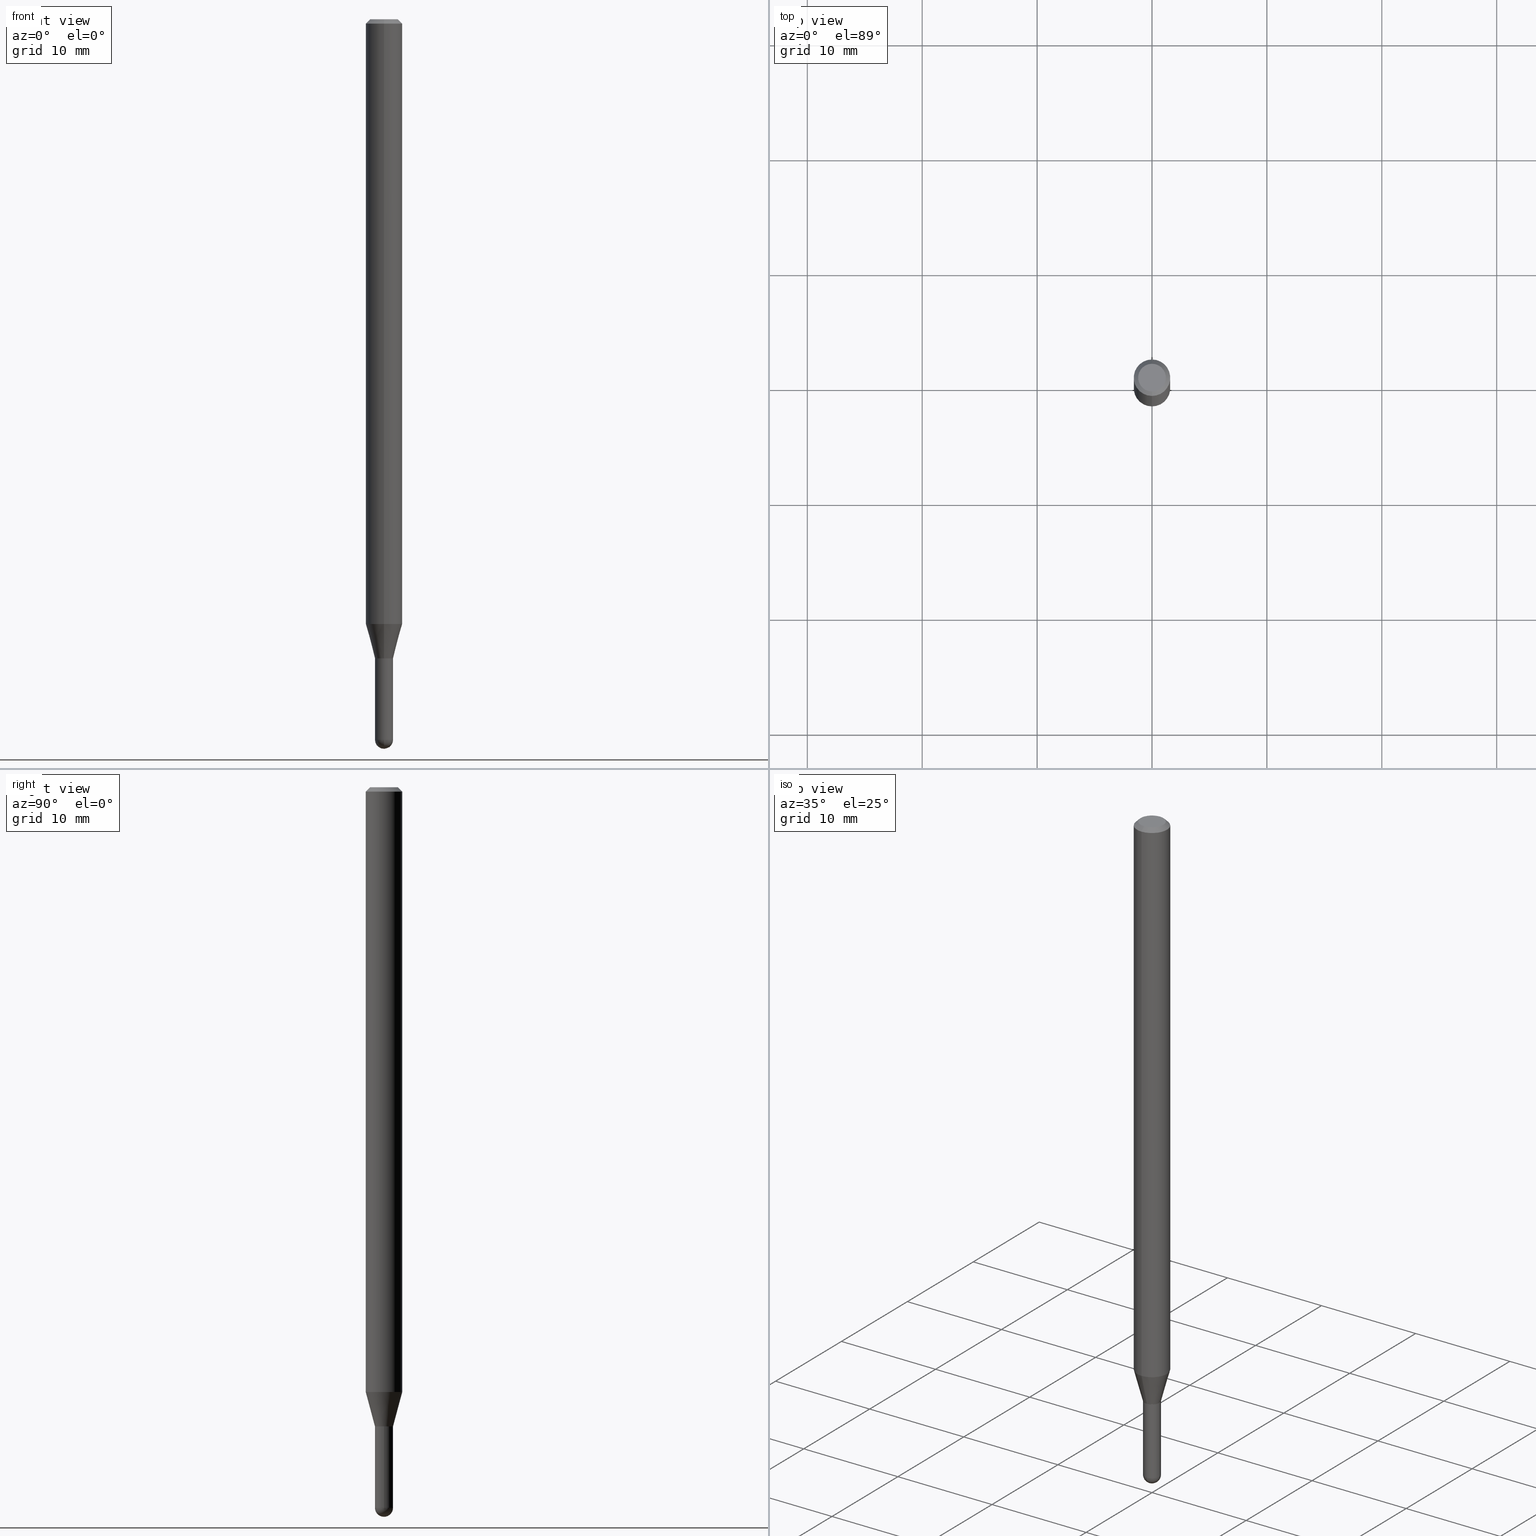
[diagram: canonical four-view strip — front | top / right | iso, engineering-drawing reading convention]
A machine part, canonical four-view strip (front | top / right | iso — engineering-drawing reading convention). The complete STEP part file that produces these views, byte-faithful:
ISO-10303-21;
HEADER;
FILE_DESCRIPTION (( 'STEP AP203' ),
    '1' );
FILE_NAME ('01512.STEP',
    '2024-03-07T19:36:01',
    ( '' ),
    ( '' ),
    'SwSTEP 2.0',
    'SolidWorks 2023',
    '' );
FILE_SCHEMA (( 'CONFIG_CONTROL_DESIGN' ));
ENDSEC;

DATA;
#1 = PERSON_AND_ORGANIZATION ( #438, #466 ) ;
#2 = DIRECTION ( 'NONE',  ( -1.000000000000000000, 6.982962677686265922E-15, -4.883557194083112340E-29 ) ) ;
#3 = EDGE_LOOP ( 'NONE', ( #104, #109 ) ) ;
#4 = CC_DESIGN_PERSON_AND_ORGANIZATION_ASSIGNMENT ( #40, #223, ( #509 ) ) ;
#5 = CARTESIAN_POINT ( 'NONE',  ( 4.440892098501135963E-16, 0.06249999999999995143, -0.01500000000000022669 ) ) ;
#6 = DATE_AND_TIME ( #339, #69 ) ;
#7 = UNCERTAINTY_MEASURE_WITH_UNIT (LENGTH_MEASURE( 1.000000000000000082E-05 ), #278, 'distance_accuracy_value', 'NONE');
#8 = DIRECTION ( 'NONE',  ( -2.445487669170412374E-29, 3.491454325974616325E-15, 1.000000000000000000 ) ) ;
#9 = CIRCLE ( 'NONE', #399, 0.03099999999999987835 ) ;
#10 = EDGE_CURVE ( 'NONE', #117, #273, #318, .T. ) ;
#11 = DATE_AND_TIME ( #80, #493 ) ;
#12 = DIRECTION ( 'NONE',  ( -2.445468806185136877E-29, 3.491481338843145188E-15, 1.000000000000000000 ) ) ;
#13 = CARTESIAN_POINT ( 'NONE',  ( 3.316907271900976096E-16, 0.04749999999999999362, -1.702748818353373679E-16 ) ) ;
#14 = AXIS2_PLACEMENT_3D ( 'NONE', #479, #321, #469 ) ;
#15 = CIRCLE ( 'NONE', #22, 0.04749999999999999362 ) ;
#16 = EDGE_CURVE ( 'NONE', #50, #384, #297, .T. ) ;
#17 = APPROVAL_DATE_TIME ( #430, #502 ) ;
#18 = APPROVAL ( #97, 'UNSPECIFIED' ) ;
#19 = CARTESIAN_POINT ( 'NONE',  ( 5.355617995483203456E-29, -7.646284973884410228E-15, -2.189999999999999947 ) ) ;
#20 = FACE_OUTER_BOUND ( 'NONE', #233, .T. ) ;
#21 = EDGE_CURVE ( 'NONE', #255, #86, #427, .T. ) ;
#22 = AXIS2_PLACEMENT_3D ( 'NONE', #192, #156, #501 ) ;
#23 = ORIENTED_EDGE ( 'NONE', *, *, #282, .T. ) ;
#24 = CARTESIAN_POINT ( 'NONE',  ( -2.164718430082737148E-16, -0.03099999999999992345, 1.082350841052128315E-16 ) ) ;
#25 = ORIENTED_EDGE ( 'NONE', *, *, #488, .F. ) ;
#26 = ORIENTED_EDGE ( 'NONE', *, *, #48, .T. ) ;
#27 = DIRECTION ( 'NONE',  ( 0.000000000000000000, 0.000000000000000000, 1.000000000000000000 ) ) ;
#28 = AXIS2_PLACEMENT_3D ( 'NONE', #468, #115, #425 ) ;
#29 = ADVANCED_FACE ( 'NONE', ( #76 ), #203, .T. ) ;
#30 = DESIGN_CONTEXT ( 'detailed design', #176, 'design' ) ;
#31 = ORIENTED_EDGE ( 'NONE', *, *, #101, .T. ) ;
#32 = CARTESIAN_POINT ( 'NONE',  ( 4.440892098500625669E-16, 0.06250000000000000000, -2.182158953734134956E-16 ) ) ;
#33 = CARTESIAN_POINT ( 'NONE',  ( -2.164718430082208858E-16, -0.03100000000000767419, -2.189500000000000224 ) ) ;
#34 = ORIENTED_EDGE ( 'NONE', *, *, #16, .F. ) ;
#35 = EDGE_CURVE ( 'NONE', #294, #419, #473, .T. ) ;
#36 = DIRECTION ( 'NONE',  ( -6.982962677686265922E-15, -1.000000000000000000, 0.000000000000000000 ) ) ;
#37 = CARTESIAN_POINT ( 'NONE',  ( -0.03099999999999999978, -7.913137530749477307E-15, -2.469000000000000306 ) ) ;
#38 = AXIS2_PLACEMENT_3D ( 'NONE', #377, #414, #264 ) ;
#39 = CONICAL_SURFACE ( 'NONE', #215, 0.03099999999999992345, 0.2617993877991575680 ) ;
#40 = PERSON_AND_ORGANIZATION ( #438, #466 ) ;
#41 = FACE_OUTER_BOUND ( 'NONE', #295, .T. ) ;
#42 = DIRECTION ( 'NONE',  ( -2.445487669170412374E-29, 3.491454325974616325E-15, 1.000000000000000000 ) ) ;
#43 = ORIENTED_EDGE ( 'NONE', *, *, #125, .F. ) ;
#44 = CARTESIAN_POINT ( 'NONE',  ( 2.164718430083277765E-16, 0.03099999999999235312, -2.189999999999999947 ) ) ;
#45 = ORIENTED_EDGE ( 'NONE', *, *, #420, .F. ) ;
#46 = ORIENTED_EDGE ( 'NONE', *, *, #141, .T. ) ;
#47 = DIRECTION ( 'NONE',  ( 1.000000000000000000, -6.982962677686270655E-15, 0.000000000000000000 ) ) ;
#48 = EDGE_CURVE ( 'NONE', #310, #164, #439, .T. ) ;
#49 = PERSON_AND_ORGANIZATION_ROLE ( 'classification_officer' ) ;
#50 = VERTEX_POINT ( 'NONE', #362 ) ;
#51 = CIRCLE ( 'NONE', #499, 0.03099999999999999978 ) ;
#52 = PERSON_AND_ORGANIZATION_ROLE ( 'design_supplier' ) ;
#53 = DIRECTION ( 'NONE',  ( -2.445487669170412374E-29, 3.491454325974616325E-15, 1.000000000000000000 ) ) ;
#54 = ADVANCED_FACE ( 'NONE', ( #381 ), #136, .T. ) ;
#55 = CARTESIAN_POINT ( 'NONE',  ( 3.668231503755621049E-31, -5.237181488961927963E-17, -0.01500000000000000812 ) ) ;
#56 = DIRECTION ( 'NONE',  ( -1.807323732225379443E-15, -0.2588190451025252359, 0.9659258262890670910 ) ) ;
#57 = VECTOR ( 'NONE', #252, 39.37007874015748143 ) ;
#58 = CONICAL_SURFACE ( 'NONE', #186, 0.03049999999999999586, 0.7853981633974739252 ) ;
#59 = ADVANCED_FACE ( 'NONE', ( #395 ), #242, .T. ) ;
#60 = COORDINATED_UNIVERSAL_TIME_OFFSET ( 5, 0, .BEHIND. ) ;
#61 = DIRECTION ( 'NONE',  ( -2.445487669170412374E-29, 3.491454325974616325E-15, 1.000000000000000000 ) ) ;
#62 = ADVANCED_FACE ( 'NONE', ( #41 ), #360, .T. ) ;
#63 = ORIENTED_EDGE ( 'NONE', *, *, #170, .T. ) ;
#64 = LINE ( 'NONE', #24, #212 ) ;
#65 = ORIENTED_EDGE ( 'NONE', *, *, #230, .F. ) ;
#66 = AXIS2_PLACEMENT_3D ( 'NONE', #334, #198, #351 ) ;
#67 = DIRECTION ( 'NONE',  ( -2.445468806185136597E-29, 3.491481338843145583E-15, 1.000000000000000000 ) ) ;
#68 = ORIENTED_EDGE ( 'NONE', *, *, #35, .T. ) ;
#69 = LOCAL_TIME ( 14, 36, 1.000000000000000000, #369 ) ;
#70 = FACE_OUTER_BOUND ( 'NONE', #511, .T. ) ;
#71 = CARTESIAN_POINT ( 'NONE',  ( 5.355617995483203456E-29, -7.646284973884410228E-15, -2.189999999999999947 ) ) ;
#72 = CYLINDRICAL_SURFACE ( 'NONE', #274, 0.06250000000000000000 ) ;
#73 = ADVANCED_FACE ( 'NONE', ( #505 ), #148, .F. ) ;
#74 = CARTESIAN_POINT ( 'NONE',  ( 5.355576685545449192E-29, -7.646344132066488554E-15, -2.189999999999999947 ) ) ;
#75 = DIRECTION ( 'NONE',  ( -2.445487669170412374E-29, 3.491454325974616325E-15, 1.000000000000000000 ) ) ;
#76 = FACE_OUTER_BOUND ( 'NONE', #421, .T. ) ;
#77 = DIRECTION ( 'NONE',  ( -6.982962677686265922E-15, -1.000000000000000000, 0.000000000000000000 ) ) ;
#78 = CARTESIAN_POINT ( 'NONE',  ( 0.03099999999999999978, -8.349877621843383680E-15, -2.469000000000000306 ) ) ;
#79 = ORIENTED_EDGE ( 'NONE', *, *, #420, .T. ) ;
#80 = CALENDAR_DATE ( 2024, 7, 3 ) ;
#81 = DIRECTION ( 'NONE',  ( -6.982962677686265922E-15, -1.000000000000000000, 0.000000000000000000 ) ) ;
#82 = DIRECTION ( 'NONE',  ( -2.445487669170412374E-29, 3.491454325974616719E-15, 1.000000000000000000 ) ) ;
#83 = CONICAL_SURFACE ( 'NONE', #287, 0.06250000000000000000, 0.7853981633974483900 ) ;
#84 = AXIS2_PLACEMENT_3D ( 'NONE', #44, #503, #195 ) ;
#85 = DIRECTION ( 'NONE',  ( -2.445487669170412374E-29, 3.491454325974616719E-15, 1.000000000000000000 ) ) ;
#86 = VERTEX_POINT ( 'NONE', #108 ) ;
#87 = SHAPE_DEFINITION_REPRESENTATION ( #441, #345 ) ;
#88 = LINE ( 'NONE', #330, #444 ) ;
#89 = EDGE_LOOP ( 'NONE', ( #385, #149, #26, #79 ) ) ;
#90 = PERSON_AND_ORGANIZATION ( #438, #466 ) ;
#91 = ADVANCED_FACE ( 'NONE', ( #70 ), #151, .F. ) ;
#92 = DATE_TIME_ROLE ( 'creation_date' ) ;
#93 = CIRCLE ( 'NONE', #214, 0.03099999999999992345 ) ;
#94 = CARTESIAN_POINT ( 'NONE',  ( 5.068127442218456188E-29, -7.235830998373855242E-15, -2.072440399561584101 ) ) ;
#95 = ADVANCED_FACE ( 'NONE', ( #279 ), #355, .F. ) ;
#96 = DIRECTION ( 'NONE',  ( -6.982962677686265922E-15, -1.000000000000000000, 3.491454325974615930E-15 ) ) ;
#97 = APPROVAL_STATUS ( 'not_yet_approved' ) ;
#98 = CARTESIAN_POINT ( 'NONE',  ( 4.440892098501130047E-16, 0.06249999999999273498, -2.072440399561584101 ) ) ;
#99 = AXIS2_PLACEMENT_3D ( 'NONE', #280, #207, #47 ) ;
#100 = LINE ( 'NONE', #137, #311 ) ;
#101 = EDGE_CURVE ( 'NONE', #273, #117, #51, .T. ) ;
#102 = CARTESIAN_POINT ( 'NONE',  ( 5.355617995483203456E-29, -7.646284973884410228E-15, -2.189999999999999947 ) ) ;
#103 = DIRECTION ( 'NONE',  ( 1.000000000000000000, -6.982962677686266711E-15, 4.876176775795935232E-29 ) ) ;
#104 = ORIENTED_EDGE ( 'NONE', *, *, #409, .T. ) ;
#105 = CIRCLE ( 'NONE', #455, 0.03099999999999987835 ) ;
#106 = CIRCLE ( 'NONE', #337, 0.06250000000000000000 ) ;
#107 = EDGE_CURVE ( 'NONE', #453, #254, #166, .T. ) ;
#108 = CARTESIAN_POINT ( 'NONE',  ( -4.364351673553912750E-16, -0.06250000000000005551, -0.01499999999999979128 ) ) ;
#109 = ORIENTED_EDGE ( 'NONE', *, *, #306, .T. ) ;
#110 = VECTOR ( 'NONE', #448, 39.37007874015748143 ) ;
#111 = CIRCLE ( 'NONE', #350, 0.04749999999999999362 ) ;
#112 = FACE_OUTER_BOUND ( 'NONE', #283, .T. ) ;
#113 = EDGE_CURVE ( 'NONE', #86, #164, #328, .T. ) ;
#114 = LINE ( 'NONE', #209, #483 ) ;
#115 = DIRECTION ( 'NONE',  ( -2.445487669170412374E-29, 3.491454325974616325E-15, 1.000000000000000000 ) ) ;
#116 = CC_DESIGN_PERSON_AND_ORGANIZATION_ASSIGNMENT ( #296, #335, ( #388 ) ) ;
#117 = VERTEX_POINT ( 'NONE', #492 ) ;
#118 = CARTESIAN_POINT ( 'NONE',  ( 6.035211466974647334E-29, -8.624263830681084699E-15, -2.469000000000000306 ) ) ;
#119 = CARTESIAN_POINT ( 'NONE',  ( 3.840629472727447874E-16, 0.04749999999999999362, -1.747056831868805136E-16 ) ) ;
#120 = ORIENTED_EDGE ( 'NONE', *, *, #134, .F. ) ;
#121 = PERSON_AND_ORGANIZATION_ROLE ( 'creator' ) ;
#122 = EDGE_LOOP ( 'NONE', ( #228, #344, #405, #268, #327 ) ) ;
#123 = CLOSED_SHELL ( 'NONE', ( #73, #293, #54, #193, #347, #386, #216, #188, #300, #91, #379, #95 ) ) ;
#124 = AXIS2_PLACEMENT_3D ( 'NONE', #308, #27, #354 ) ;
#125 = EDGE_CURVE ( 'NONE', #312, #86, #100, .T. ) ;
#126 = CARTESIAN_POINT ( 'NONE',  ( 5.354395251648617530E-29, -7.644539246721424171E-15, -2.189500000000000224 ) ) ;
#127 = CALENDAR_DATE ( 2024, 7, 3 ) ;
#128 = ORIENTED_EDGE ( 'NONE', *, *, #497, .F. ) ;
#129 = LENGTH_MEASURE_WITH_UNIT ( LENGTH_MEASURE( 0.02539999999999999897 ), #307 );
#130 = CARTESIAN_POINT ( 'NONE',  ( 2.202682480856832688E-16, 0.03099999999999216924, -2.189500000000000224 ) ) ;
#131 = EDGE_CURVE ( 'NONE', #312, #286, #443, .T. ) ;
#132 = AXIS2_PLACEMENT_3D ( 'NONE', #55, #217, #370 ) ;
#133 = APPLICATION_PROTOCOL_DEFINITION ( 'international standard', 'config_control_design', 1994, #176 ) ;
#134 = EDGE_CURVE ( 'NONE', #417, #254, #64, .T. ) ;
#135 = DIRECTION ( 'NONE',  ( 1.000000000000000000, -6.982962677686265922E-15, 4.883557194083112340E-29 ) ) ;
#136 = CONICAL_SURFACE ( 'NONE', #66, 0.06250000000000000000, 0.7853981633974483900 ) ;
#137 = CARTESIAN_POINT ( 'NONE',  ( -4.364351673553916201E-16, -0.06250000000000000000, 2.182158953734134956E-16 ) ) ;
#138 = ORIENTED_EDGE ( 'NONE', *, *, #183, .F. ) ;
#139 = APPLICATION_CONTEXT ( 'configuration controlled 3d designs of mechanical parts and assemblies' ) ;
#140 = MANIFOLD_SOLID_BREP ( 'Body-Move/Copy2[2]', #123 ) ;
#141 = EDGE_CURVE ( 'NONE', #168, #50, #491, .T. ) ;
#142 = DIRECTION ( 'NONE',  ( -2.445487669170412374E-29, 3.491454325974616325E-15, 1.000000000000000000 ) ) ;
#143 = ORIENTED_EDGE ( 'NONE', *, *, #497, .T. ) ;
#144 = AXIS2_PLACEMENT_3D ( 'NONE', #240, #393, #320 ) ;
#145 = CIRCLE ( 'NONE', #313, 0.03049999999999999586 ) ;
#146 = FACE_OUTER_BOUND ( 'NONE', #500, .T. ) ;
#147 = CC_DESIGN_PERSON_AND_ORGANIZATION_ASSIGNMENT ( #174, #52, ( #173 ) ) ;
#148 = CYLINDRICAL_SURFACE ( 'NONE', #190, 0.03099999999999992345 ) ;
#149 = ORIENTED_EDGE ( 'NONE', *, *, #409, .F. ) ;
#150 = FACE_OUTER_BOUND ( 'NONE', #495, .T. ) ;
#151 = PLANE ( 'NONE',  #144 ) ;
#152 = AXIS2_PLACEMENT_3D ( 'NONE', #460, #353, #401 ) ;
#153 = PRODUCT_RELATED_PRODUCT_CATEGORY ( 'detail', '', ( #509 ) ) ;
#154 = AXIS2_PLACEMENT_3D ( 'NONE', #281, #428, #77 ) ;
#155 = ORIENTED_EDGE ( 'NONE', *, *, #208, .F. ) ;
#156 = DIRECTION ( 'NONE',  ( -2.445487669170412374E-29, 3.491454325974616325E-15, 1.000000000000000000 ) ) ;
#157 = ORIENTED_EDGE ( 'NONE', *, *, #125, .T. ) ;
#158 = ORIENTED_EDGE ( 'NONE', *, *, #141, .F. ) ;
#159 = DIRECTION ( 'NONE',  ( -2.445487669170412374E-29, 3.491454325974616325E-15, 1.000000000000000000 ) ) ;
#160 = CARTESIAN_POINT ( 'NONE',  ( 5.354395251648617530E-29, -7.644539246721424171E-15, -2.189500000000000224 ) ) ;
#161 = ORIENTED_EDGE ( 'NONE', *, *, #134, .T. ) ;
#162 = ORIENTED_EDGE ( 'NONE', *, *, #101, .F. ) ;
#163 = DIRECTION ( 'NONE',  ( -2.445468806185136597E-29, 3.491481338843145583E-15, 1.000000000000000000 ) ) ;
#164 = VERTEX_POINT ( 'NONE', #5 ) ;
#165 = PERSON_AND_ORGANIZATION ( #438, #466 ) ;
#166 = LINE ( 'NONE', #475, #348 ) ;
#167 = DIRECTION ( 'NONE',  ( -1.000000000000000000, 7.105427357601001070E-15, -4.926315508542082329E-29 ) ) ;
#168 = VERTEX_POINT ( 'NONE', #78 ) ;
#169 = DIRECTION ( 'NONE',  ( 1.839019923739650408E-15, 0.2588190451025319527, 0.9659258262890650926 ) ) ;
#170 = EDGE_CURVE ( 'NONE', #286, #164, #391, .T. ) ;
#171 = DIRECTION ( 'NONE',  ( -7.105427357601001070E-15, -1.000000000000000000, 0.000000000000000000 ) ) ;
#172 = AXIS2_PLACEMENT_3D ( 'NONE', #211, #271, #450 ) ;
#173 = PRODUCT_DEFINITION_FORMATION_WITH_SPECIFIED_SOURCE ( 'ANY', '', #509, .NOT_KNOWN. ) ;
#174 = PERSON_AND_ORGANIZATION ( #438, #466 ) ;
#175 = EDGE_LOOP ( 'NONE', ( #442, #155, #161, #205 ) ) ;
#176 = APPLICATION_CONTEXT ( 'configuration controlled 3d designs of mechanical parts and assemblies' ) ;
#177 = EDGE_CURVE ( 'NONE', #294, #286, #243, .T. ) ;
#178 = CARTESIAN_POINT ( 'NONE',  ( 2.167094013948461055E-46, -3.093988109275882738E-32, -8.861602703086246777E-18 ) ) ;
#179 = DIRECTION ( 'NONE',  ( -2.445468806185136597E-29, 3.491481338843145583E-15, 1.000000000000000000 ) ) ;
#180 = AXIS2_PLACEMENT_3D ( 'NONE', #426, #75, #36 ) ;
#181 = CARTESIAN_POINT ( 'NONE',  ( 0.03099999999999999978, -7.862815975074762885E-15, -2.189999999999999947 ) ) ;
#182 = PLANE ( 'NONE',  #270 ) ;
#183 = EDGE_CURVE ( 'NONE', #324, #168, #357, .T. ) ;
#184 = DIRECTION ( 'NONE',  ( -6.982962677686265922E-15, -1.000000000000000000, 4.370956789862821150E-15 ) ) ;
#185 = ORIENTED_EDGE ( 'NONE', *, *, #267, .T. ) ;
#186 = AXIS2_PLACEMENT_3D ( 'NONE', #19, #61, #304 ) ;
#187 = CARTESIAN_POINT ( 'NONE',  ( 6.037862482471103495E-29, -8.620467425603728566E-15, -2.469000000000000306 ) ) ;
#188 = ADVANCED_FACE ( 'NONE', ( #196 ), #83, .T. ) ;
#189 = EDGE_LOOP ( 'NONE', ( #231, #23, #471, #128 ) ) ;
#190 = AXIS2_PLACEMENT_3D ( 'NONE', #314, #159, #237 ) ;
#191 = AXIS2_PLACEMENT_3D ( 'NONE', #71, #394, #199 ) ;
#192 = CARTESIAN_POINT ( 'NONE',  ( 2.167094013948461055E-46, -3.093988109275882738E-32, -8.861602703086246777E-18 ) ) ;
#193 = ADVANCED_FACE ( 'NONE', ( #150 ), #72, .T. ) ;
#194 = MECHANICAL_CONTEXT ( 'NONE', #139, 'mechanical' ) ;
#195 = DIRECTION ( 'NONE',  ( -1.000000000000000000, 6.982962677686265922E-15, -4.876176775795935793E-29 ) ) ;
#196 = FACE_OUTER_BOUND ( 'NONE', #89, .T. ) ;
#197 = CARTESIAN_POINT ( 'NONE',  ( -3.773273898774340269E-16, -0.04749999999999999362, 1.569824777807080293E-16 ) ) ;
#198 = DIRECTION ( 'NONE',  ( 2.445487669170412374E-29, -3.491454325974616325E-15, -1.000000000000000000 ) ) ;
#199 = DIRECTION ( 'NONE',  ( -6.982962677686265922E-15, -1.000000000000000000, 0.000000000000000000 ) ) ;
#200 = ORIENTED_EDGE ( 'NONE', *, *, #480, .F. ) ;
#201 = AXIS2_PLACEMENT_3D ( 'NONE', #343, #498, #103 ) ;
#202 =( GEOMETRIC_REPRESENTATION_CONTEXT ( 3 ) GLOBAL_UNCERTAINTY_ASSIGNED_CONTEXT ( ( #7 ) ) GLOBAL_UNIT_ASSIGNED_CONTEXT ( ( #278, #392, #258 ) ) REPRESENTATION_CONTEXT ( 'NONE', 'WORKASPACE' ) );
#203 = SPHERICAL_SURFACE ( 'NONE', #389, 0.03099999999999987835 ) ;
#204 = FACE_OUTER_BOUND ( 'NONE', #413, .T. ) ;
#205 = ORIENTED_EDGE ( 'NONE', *, *, #480, .T. ) ;
#206 = DATE_AND_TIME ( #447, #368 ) ;
#207 = DIRECTION ( 'NONE',  ( -2.445468806185136597E-29, 3.491481338843145583E-15, 1.000000000000000000 ) ) ;
#208 = EDGE_CURVE ( 'NONE', #417, #294, #416, .T. ) ;
#209 = CARTESIAN_POINT ( 'NONE',  ( -2.164718430082201463E-16, -0.03100000000000756664, -2.189999999999999947 ) ) ;
#210 = ORIENTED_EDGE ( 'NONE', *, *, #267, .F. ) ;
#211 = CARTESIAN_POINT ( 'NONE',  ( 3.668231503755621049E-31, -5.237181488961927963E-17, -0.01500000000000000812 ) ) ;
#212 = VECTOR ( 'NONE', #415, 39.37007874015748143 ) ;
#213 = ORIENTED_EDGE ( 'NONE', *, *, #365, .F. ) ;
#214 = AXIS2_PLACEMENT_3D ( 'NONE', #126, #42, #81 ) ;
#215 = AXIS2_PLACEMENT_3D ( 'NONE', #485, #219, #482 ) ;
#216 = ADVANCED_FACE ( 'NONE', ( #20 ), #305, .T. ) ;
#217 = DIRECTION ( 'NONE',  ( -2.445487669170412374E-29, 3.491454325974616325E-15, 1.000000000000000000 ) ) ;
#218 = DIRECTION ( 'NONE',  ( -6.982962677686265922E-15, -1.000000000000000000, 4.370956789862821150E-15 ) ) ;
#219 = DIRECTION ( 'NONE',  ( -2.445487669170412374E-29, 3.491454325974616325E-15, 1.000000000000000000 ) ) ;
#220 = CONICAL_SURFACE ( 'NONE', #376, 0.03099999999999992345, 0.2617993877991575680 ) ;
#221 = CARTESIAN_POINT ( 'NONE',  ( 6.035211466974647334E-29, -8.624263830681084699E-15, -2.469000000000000306 ) ) ;
#222 = LINE ( 'NONE', #303, #110 ) ;
#223 = PERSON_AND_ORGANIZATION_ROLE ( 'design_owner' ) ;
#224 = CARTESIAN_POINT ( 'NONE',  ( 3.321787289678987037E-16, 0.03099999999999227679, -2.189999999999999947 ) ) ;
#225 = CARTESIAN_POINT ( 'NONE',  ( 5.068127442218456188E-29, -7.235830998373855242E-15, -2.072440399561584101 ) ) ;
#226 = ORIENTED_EDGE ( 'NONE', *, *, #107, .F. ) ;
#227 = AXIS2_PLACEMENT_3D ( 'NONE', #309, #142, #452 ) ;
#228 = ORIENTED_EDGE ( 'NONE', *, *, #251, .F. ) ;
#229 = CC_DESIGN_APPROVAL ( #502, ( #388 ) ) ;
#230 = EDGE_CURVE ( 'NONE', #384, #324, #374, .T. ) ;
#231 = ORIENTED_EDGE ( 'NONE', *, *, #474, .F. ) ;
#232 = DIRECTION ( 'NONE',  ( 1.000000000000000000, -6.982962677686270655E-15, 0.000000000000000000 ) ) ;
#233 = EDGE_LOOP ( 'NONE', ( #290, #266, #157, #45 ) ) ;
#234 = ADVANCED_FACE ( 'NONE', ( #146 ), #459, .T. ) ;
#235 = ORIENTED_EDGE ( 'NONE', *, *, #454, .F. ) ;
#236 = VECTOR ( 'NONE', #169, 39.37007874015748854 ) ;
#237 = DIRECTION ( 'NONE',  ( -6.982962677686265922E-15, -1.000000000000000000, 3.491454325974615930E-15 ) ) ;
#238 = SECURITY_CLASSIFICATION ( '', '', #361 ) ;
#239 = DIMENSIONAL_EXPONENTS ( 1.000000000000000000, 0.000000000000000000, 0.000000000000000000, 0.000000000000000000, 0.000000000000000000, 0.000000000000000000, 0.000000000000000000 ) ;
#240 = CARTESIAN_POINT ( 'NONE',  ( 5.355617995483203456E-29, -7.646284973884410228E-15, -2.189999999999999947 ) ) ;
#241 = CARTESIAN_POINT ( 'NONE',  ( -4.364351673553410837E-16, -0.06250000000000725808, -2.072440399561583657 ) ) ;
#242 = CYLINDRICAL_SURFACE ( 'NONE', #152, 0.03099999999999999978 ) ;
#243 = LINE ( 'NONE', #463, #236 ) ;
#244 = DIRECTION ( 'NONE',  ( 5.024295867788190974E-15, 0.7071067811865681119, 0.7071067811865270336 ) ) ;
#245 = CIRCLE ( 'NONE', #132, 0.06250000000000000000 ) ;
#246 = DIRECTION ( 'NONE',  ( -2.445487669170412374E-29, 3.491454325974616325E-15, 1.000000000000000000 ) ) ;
#247 = CARTESIAN_POINT ( 'NONE',  ( 4.364351673553919652E-16, 0.06249999999999995143, -0.01500000000000022669 ) ) ;
#248 = APPLICATION_PROTOCOL_DEFINITION ( 'international standard', 'config_control_design', 1994, #139 ) ;
#249 = ORIENTED_EDGE ( 'NONE', *, *, #461, .T. ) ;
#250 = PERSON_AND_ORGANIZATION ( #438, #466 ) ;
#251 = EDGE_CURVE ( 'NONE', #384, #117, #222, .T. ) ;
#252 = DIRECTION ( 'NONE',  ( -4.851104656540964275E-15, -0.7071067811865500152, -0.7071067811865450192 ) ) ;
#253 = APPROVAL_ROLE ( '' ) ;
#254 = VERTEX_POINT ( 'NONE', #33 ) ;
#255 = VERTEX_POINT ( 'NONE', #197 ) ;
#256 = DIRECTION ( 'NONE',  ( 1.000000000000000000, -6.982962677686270655E-15, 0.000000000000000000 ) ) ;
#257 = CLOSED_SHELL ( 'NONE', ( #234, #62, #323, #29, #59 ) ) ;
#258 =( NAMED_UNIT ( * ) SI_UNIT ( $, .STERADIAN. ) SOLID_ANGLE_UNIT ( ) );
#259 = DIRECTION ( 'NONE',  ( -6.982962677686266711E-15, -1.000000000000000000, 3.491454325974616719E-15 ) ) ;
#260 = EDGE_CURVE ( 'NONE', #417, #312, #114, .T. ) ;
#261 = APPROVAL_ROLE ( '' ) ;
#262 = LOCAL_TIME ( 14, 36, 1.000000000000000000, #486 ) ;
#263 = FACE_OUTER_BOUND ( 'NONE', #408, .T. ) ;
#264 = DIRECTION ( 'NONE',  ( -6.982962677686265922E-15, -1.000000000000000000, 0.000000000000000000 ) ) ;
#265 = DIRECTION ( 'NONE',  ( -2.445487669170412374E-29, 3.491454325974616719E-15, 1.000000000000000000 ) ) ;
#266 = ORIENTED_EDGE ( 'NONE', *, *, #454, .T. ) ;
#267 = EDGE_CURVE ( 'NONE', #315, #50, #105, .T. ) ;
#268 = ORIENTED_EDGE ( 'NONE', *, *, #449, .T. ) ;
#269 = VECTOR ( 'NONE', #402, 39.37007874015748143 ) ;
#270 = AXIS2_PLACEMENT_3D ( 'NONE', #13, #340, #490 ) ;
#271 = DIRECTION ( 'NONE',  ( -2.445487669170412374E-29, 3.491454325974616325E-15, 1.000000000000000000 ) ) ;
#272 = ORIENTED_EDGE ( 'NONE', *, *, #113, .T. ) ;
#273 = VERTEX_POINT ( 'NONE', #181 ) ;
#274 = AXIS2_PLACEMENT_3D ( 'NONE', #373, #8, #96 ) ;
#275 = CC_DESIGN_SECURITY_CLASSIFICATION ( #238, ( #173 ) ) ;
#276 = CARTESIAN_POINT ( 'NONE',  ( 5.355617995483203456E-29, -7.646284973884410228E-15, -2.189999999999999947 ) ) ;
#277 = DIRECTION ( 'NONE',  ( -2.445468806185136597E-29, 3.491481338843145583E-15, 1.000000000000000000 ) ) ;
#278 =( CONVERSION_BASED_UNIT ( 'INCH', #129 ) LENGTH_UNIT ( ) NAMED_UNIT ( #239 ) );
#279 = FACE_OUTER_BOUND ( 'NONE', #175, .T. ) ;
#280 = CARTESIAN_POINT ( 'NONE',  ( 6.037862482471103495E-29, -8.620467425603728566E-15, -2.469000000000000306 ) ) ;
#281 = CARTESIAN_POINT ( 'NONE',  ( 5.355617995483203456E-29, -7.646284973884410228E-15, -2.189999999999999947 ) ) ;
#282 = EDGE_CURVE ( 'NONE', #349, #453, #145, .T. ) ;
#283 = EDGE_LOOP ( 'NONE', ( #429, #396, #390, #358 ) ) ;
#284 = DIRECTION ( 'NONE',  ( -1.000000000000000000, 6.982962677686265922E-15, -4.883557194083112340E-29 ) ) ;
#285 = DIRECTION ( 'NONE',  ( -6.982962677686265922E-15, -1.000000000000000000, 0.000000000000000000 ) ) ;
#286 = VERTEX_POINT ( 'NONE', #98 ) ;
#287 = AXIS2_PLACEMENT_3D ( 'NONE', #404, #397, #504 ) ;
#288 = CARTESIAN_POINT ( 'NONE',  ( 6.035211466974647334E-29, -8.624263830681084699E-15, -2.469000000000000306 ) ) ;
#289 = CIRCLE ( 'NONE', #180, 0.03099999999999992345 ) ;
#290 = ORIENTED_EDGE ( 'NONE', *, *, #170, .F. ) ;
#291 = ORIENTED_EDGE ( 'NONE', *, *, #488, .T. ) ;
#292 = APPROVAL_STATUS ( 'not_yet_approved' ) ;
#293 = ADVANCED_FACE ( 'NONE', ( #263 ), #58, .T. ) ;
#294 = VERTEX_POINT ( 'NONE', #224 ) ;
#295 = EDGE_LOOP ( 'NONE', ( #210, #249, #65, #34 ) ) ;
#296 = PERSON_AND_ORGANIZATION ( #438, #466 ) ;
#297 = CIRCLE ( 'NONE', #99, 0.03099999999999999978 ) ;
#298 = LINE ( 'NONE', #372, #456 ) ;
#299 = DIRECTION ( 'NONE',  ( -2.445487669170412374E-29, 3.491454325974616325E-15, 1.000000000000000000 ) ) ;
#300 = ADVANCED_FACE ( 'NONE', ( #380 ), #182, .F. ) ;
#301 = APPROVAL_STATUS ( 'not_yet_approved' ) ;
#302 = DIRECTION ( 'NONE',  ( -6.982962677686265922E-15, -1.000000000000000000, 0.000000000000000000 ) ) ;
#303 = CARTESIAN_POINT ( 'NONE',  ( -0.03099999999999999978, 2.202682480856310560E-16, -1.524869877979020612E-30 ) ) ;
#304 = DIRECTION ( 'NONE',  ( -6.982962677686265922E-15, -1.000000000000000000, 0.000000000000000000 ) ) ;
#305 = CYLINDRICAL_SURFACE ( 'NONE', #227, 0.06250000000000000000 ) ;
#306 = EDGE_CURVE ( 'NONE', #255, #310, #15, .T. ) ;
#307 =( LENGTH_UNIT ( ) NAMED_UNIT ( * ) SI_UNIT ( $, .METRE. ) );
#308 = CARTESIAN_POINT ( 'NONE',  ( 0.000000000000000000, 0.000000000000000000, 0.000000000000000000 ) ) ;
#309 = CARTESIAN_POINT ( 'NONE',  ( 0.000000000000000000, 0.000000000000000000, 0.000000000000000000 ) ) ;
#310 = VERTEX_POINT ( 'NONE', #119 ) ;
#311 = VECTOR ( 'NONE', #265, 39.37007874015748143 ) ;
#312 = VERTEX_POINT ( 'NONE', #241 ) ;
#313 = AXIS2_PLACEMENT_3D ( 'NONE', #102, #487, #302 ) ;
#314 = CARTESIAN_POINT ( 'NONE',  ( 0.000000000000000000, 0.000000000000000000, 0.000000000000000000 ) ) ;
#315 = VERTEX_POINT ( 'NONE', #356 ) ;
#316 = CC_DESIGN_DATE_AND_TIME_ASSIGNMENT ( #440, #92, ( #388 ) ) ;
#317 = FACE_OUTER_BOUND ( 'NONE', #436, .T. ) ;
#318 = CIRCLE ( 'NONE', #14, 0.03099999999999999978 ) ;
#319 = CIRCLE ( 'NONE', #191, 0.03049999999999999586 ) ;
#320 = DIRECTION ( 'NONE',  ( -6.982962677686265922E-15, -1.000000000000000000, 3.491454325974616719E-15 ) ) ;
#321 = DIRECTION ( 'NONE',  ( -2.445468806185136597E-29, 3.491481338843145583E-15, 1.000000000000000000 ) ) ;
#322 = ORIENTED_EDGE ( 'NONE', *, *, #306, .F. ) ;
#323 = ADVANCED_FACE ( 'NONE', ( #317 ), #462, .F. ) ;
#324 = VERTEX_POINT ( 'NONE', #465 ) ;
#325 = CARTESIAN_POINT ( 'NONE',  ( -4.287811248607203282E-16, -0.06250000000000005551, -0.01499999999999979128 ) ) ;
#326 = EDGE_LOOP ( 'NONE', ( #25, #68, #143, #120 ) ) ;
#327 = ORIENTED_EDGE ( 'NONE', *, *, #10, .F. ) ;
#328 = CIRCLE ( 'NONE', #172, 0.06250000000000000000 ) ;
#329 = MANIFOLD_SOLID_BREP ( 'Body-Move/Copy2[1]', #257 ) ;
#330 = CARTESIAN_POINT ( 'NONE',  ( 2.167155344068840712E-16, 0.03049999999999235267, -2.189999999999999947 ) ) ;
#331 = CONICAL_SURFACE ( 'NONE', #154, 0.03049999999999999586, 0.7853981633974739252 ) ;
#332 = ORIENTED_EDGE ( 'NONE', *, *, #21, .T. ) ;
#333 = ORIENTED_EDGE ( 'NONE', *, *, #113, .F. ) ;
#334 = CARTESIAN_POINT ( 'NONE',  ( 3.668231503755621049E-31, -5.237181488961927963E-17, -0.01500000000000000812 ) ) ;
#335 = PERSON_AND_ORGANIZATION_ROLE ( 'creator' ) ;
#336 = AXIS2_PLACEMENT_3D ( 'NONE', #187, #163, #424 ) ;
#337 = AXIS2_PLACEMENT_3D ( 'NONE', #94, #53, #218 ) ;
#338 = APPROVAL ( #301, 'UNSPECIFIED' ) ;
#339 = CALENDAR_DATE ( 2024, 7, 3 ) ;
#340 = DIRECTION ( 'NONE',  ( 2.445487669170411814E-29, -3.491454325974616719E-15, -1.000000000000000000 ) ) ;
#341 = AXIS2_PLACEMENT_3D ( 'NONE', #472, #2, #458 ) ;
#342 = CIRCLE ( 'NONE', #359, 0.03099999999999992345 ) ;
#343 = CARTESIAN_POINT ( 'NONE',  ( 0.000000000000000000, 0.000000000000000000, 0.000000000000000000 ) ) ;
#344 = ORIENTED_EDGE ( 'NONE', *, *, #230, .T. ) ;
#345 = ADVANCED_BREP_SHAPE_REPRESENTATION ( '01512', ( #329, #140, #124 ), #202 ) ;
#346 = ORIENTED_EDGE ( 'NONE', *, *, #449, .F. ) ;
#347 = ADVANCED_FACE ( 'NONE', ( #112 ), #220, .T. ) ;
#348 = VECTOR ( 'NONE', #407, 39.37007874015748143 ) ;
#349 = VERTEX_POINT ( 'NONE', #363 ) ;
#350 = AXIS2_PLACEMENT_3D ( 'NONE', #178, #299, #259 ) ;
#351 = DIRECTION ( 'NONE',  ( 6.982962677686265922E-15, 1.000000000000000000, -3.483106191921935554E-15 ) ) ;
#352 = ORIENTED_EDGE ( 'NONE', *, *, #260, .T. ) ;
#353 = DIRECTION ( 'NONE',  ( -2.445468806185136597E-29, 3.491481338843145583E-15, 1.000000000000000000 ) ) ;
#354 = DIRECTION ( 'NONE',  ( 1.000000000000000000, 0.000000000000000000, 0.000000000000000000 ) ) ;
#355 = CYLINDRICAL_SURFACE ( 'NONE', #28, 0.03099999999999992345 ) ;
#356 = CARTESIAN_POINT ( 'NONE',  ( 6.112346507714613972E-29, -8.730601549646543009E-15, -2.500000000000000000 ) ) ;
#357 = CIRCLE ( 'NONE', #398, 0.03099999999999999978 ) ;
#358 = ORIENTED_EDGE ( 'NONE', *, *, #260, .F. ) ;
#359 = AXIS2_PLACEMENT_3D ( 'NONE', #160, #246, #496 ) ;
#360 = SPHERICAL_SURFACE ( 'NONE', #341, 0.03099999999999987835 ) ;
#361 = SECURITY_CLASSIFICATION_LEVEL ( 'unclassified' ) ;
#362 = CARTESIAN_POINT ( 'NONE',  ( 2.164718430083341860E-16, 0.03099999999999131575, -2.469000000000000306 ) ) ;
#363 = CARTESIAN_POINT ( 'NONE',  ( 2.184918912462840521E-16, 0.03049999999999235267, -2.189999999999999947 ) ) ;
#364 = CARTESIAN_POINT ( 'NONE',  ( 2.202682480856304644E-16, 0.03099999999999992345, -1.082350841052128315E-16 ) ) ;
#365 = EDGE_CURVE ( 'NONE', #453, #349, #319, .T. ) ;
#366 = COORDINATED_UNIVERSAL_TIME_OFFSET ( 5, 0, .BEHIND. ) ;
#367 = VECTOR ( 'NONE', #85, 39.37007874015748143 ) ;
#368 = LOCAL_TIME ( 14, 36, 1.000000000000000000, #489 ) ;
#369 = COORDINATED_UNIVERSAL_TIME_OFFSET ( 5, 0, .BEHIND. ) ;
#370 = DIRECTION ( 'NONE',  ( -6.982962677686265922E-15, -1.000000000000000000, 3.483106191921935554E-15 ) ) ;
#371 = EDGE_LOOP ( 'NONE', ( #322, #332, #272, #478 ) ) ;
#372 = CARTESIAN_POINT ( 'NONE',  ( 0.03099999999999999978, -2.164718430082742572E-16, 1.511614800496739984E-30 ) ) ;
#373 = CARTESIAN_POINT ( 'NONE',  ( 0.000000000000000000, 0.000000000000000000, 0.000000000000000000 ) ) ;
#374 = CIRCLE ( 'NONE', #432, 0.03099999999999999978 ) ;
#375 = CC_DESIGN_DATE_AND_TIME_ASSIGNMENT ( #6, #433, ( #238 ) ) ;
#376 = AXIS2_PLACEMENT_3D ( 'NONE', #276, #507, #285 ) ;
#377 = CARTESIAN_POINT ( 'NONE',  ( 5.355617995483203456E-29, -7.646284973884410228E-15, -2.189999999999999947 ) ) ;
#378 = APPROVAL_ROLE ( '' ) ;
#379 = ADVANCED_FACE ( 'NONE', ( #470 ), #331, .T. ) ;
#380 = FACE_OUTER_BOUND ( 'NONE', #3, .T. ) ;
#381 = FACE_OUTER_BOUND ( 'NONE', #371, .T. ) ;
#382 = DIRECTION ( 'NONE',  ( -2.445487669170412374E-29, 3.491454325974616325E-15, 1.000000000000000000 ) ) ;
#383 = CARTESIAN_POINT ( 'NONE',  ( 6.037862482471103495E-29, -8.620467425603728566E-15, -2.469000000000000306 ) ) ;
#384 = VERTEX_POINT ( 'NONE', #37 ) ;
#385 = ORIENTED_EDGE ( 'NONE', *, *, #21, .F. ) ;
#386 = ADVANCED_FACE ( 'NONE', ( #204 ), #39, .T. ) ;
#387 = ORIENTED_EDGE ( 'NONE', *, *, #16, .T. ) ;
#388 = PRODUCT_DEFINITION ( 'UNKNOWN', '', #173, #30 ) ;
#389 = AXIS2_PLACEMENT_3D ( 'NONE', #118, #284, #431 ) ;
#390 = ORIENTED_EDGE ( 'NONE', *, *, #131, .F. ) ;
#391 = LINE ( 'NONE', #32, #367 ) ;
#392 =( NAMED_UNIT ( * ) PLANE_ANGLE_UNIT ( ) SI_UNIT ( $, .RADIAN. ) );
#393 = DIRECTION ( 'NONE',  ( -2.445487669170411814E-29, 3.491454325974616719E-15, 1.000000000000000000 ) ) ;
#394 = DIRECTION ( 'NONE',  ( -2.445487669170412374E-29, 3.491454325974616325E-15, 1.000000000000000000 ) ) ;
#395 = FACE_OUTER_BOUND ( 'NONE', #122, .T. ) ;
#396 = ORIENTED_EDGE ( 'NONE', *, *, #177, .T. ) ;
#397 = DIRECTION ( 'NONE',  ( 2.445487669170412374E-29, -3.491454325974616325E-15, -1.000000000000000000 ) ) ;
#398 = AXIS2_PLACEMENT_3D ( 'NONE', #435, #277, #467 ) ;
#399 = AXIS2_PLACEMENT_3D ( 'NONE', #288, #167, #171 ) ;
#400 = APPROVAL_DATE_TIME ( #206, #18 ) ;
#401 = DIRECTION ( 'NONE',  ( 1.000000000000000000, -6.982962677686266711E-15, 4.876176775795935232E-29 ) ) ;
#402 = DIRECTION ( 'NONE',  ( 4.937700262164548042E-15, 0.7071067811865451302, -0.7071067811865499042 ) ) ;
#403 = ORIENTED_EDGE ( 'NONE', *, *, #365, .T. ) ;
#404 = CARTESIAN_POINT ( 'NONE',  ( 3.668231503755621049E-31, -5.237181488961927963E-17, -0.01500000000000000812 ) ) ;
#405 = ORIENTED_EDGE ( 'NONE', *, *, #183, .T. ) ;
#406 = PERSON_AND_ORGANIZATION ( #438, #466 ) ;
#407 = DIRECTION ( 'NONE',  ( -4.937700262164674260E-15, -0.7071067811865632269, 0.7071067811865319186 ) ) ;
#408 = EDGE_LOOP ( 'NONE', ( #403, #512, #200, #226 ) ) ;
#409 = EDGE_CURVE ( 'NONE', #310, #255, #111, .T. ) ;
#410 = CARTESIAN_POINT ( 'NONE',  ( -2.164718430082201463E-16, -0.03100000000000756664, -2.189999999999999947 ) ) ;
#411 = VECTOR ( 'NONE', #82, 39.37007874015748143 ) ;
#412 = CALENDAR_DATE ( 2024, 7, 3 ) ;
#413 = EDGE_LOOP ( 'NONE', ( #481, #291, #352, #235 ) ) ;
#414 = DIRECTION ( 'NONE',  ( -2.445487669170412374E-29, 3.491454325974616325E-15, 1.000000000000000000 ) ) ;
#415 = DIRECTION ( 'NONE',  ( -2.445487669170412374E-29, 3.491454325974616719E-15, 1.000000000000000000 ) ) ;
#416 = CIRCLE ( 'NONE', #38, 0.03099999999999992345 ) ;
#417 = VERTEX_POINT ( 'NONE', #410 ) ;
#418 = LOCAL_TIME ( 14, 36, 1.000000000000000000, #366 ) ;
#419 = VERTEX_POINT ( 'NONE', #130 ) ;
#420 = EDGE_CURVE ( 'NONE', #164, #86, #245, .T. ) ;
#421 = EDGE_LOOP ( 'NONE', ( #434, #185, #158, #138 ) ) ;
#422 = AXIS2_PLACEMENT_3D ( 'NONE', #225, #382, #184 ) ;
#423 = CC_DESIGN_APPROVAL ( #18, ( #238 ) ) ;
#424 = DIRECTION ( 'NONE',  ( 1.000000000000000000, -6.982962677686270655E-15, 0.000000000000000000 ) ) ;
#425 = DIRECTION ( 'NONE',  ( -6.982962677686265922E-15, -1.000000000000000000, 3.491454325974615930E-15 ) ) ;
#426 = CARTESIAN_POINT ( 'NONE',  ( 5.355617995483203456E-29, -7.646284973884410228E-15, -2.189999999999999947 ) ) ;
#427 = LINE ( 'NONE', #325, #57 ) ;
#428 = DIRECTION ( 'NONE',  ( -2.445487669170412374E-29, 3.491454325974616325E-15, 1.000000000000000000 ) ) ;
#429 = ORIENTED_EDGE ( 'NONE', *, *, #208, .T. ) ;
#430 = DATE_AND_TIME ( #127, #418 ) ;
#431 = DIRECTION ( 'NONE',  ( 6.982962677686265922E-15, 1.000000000000000000, 0.000000000000000000 ) ) ;
#432 = AXIS2_PLACEMENT_3D ( 'NONE', #383, #67, #232 ) ;
#433 = DATE_TIME_ROLE ( 'classification_date' ) ;
#434 = ORIENTED_EDGE ( 'NONE', *, *, #461, .F. ) ;
#435 = CARTESIAN_POINT ( 'NONE',  ( 6.037862482471103495E-29, -8.620467425603728566E-15, -2.469000000000000306 ) ) ;
#436 = EDGE_LOOP ( 'NONE', ( #31, #464 ) ) ;
#437 = APPROVAL_DATE_TIME ( #11, #338 ) ;
#438 = PERSON ( 'UNSPECIFIED', 'UNSPECIFIED', 'UNSPECIFIED', ('UNSPECIFIED'), ('UNSPECIFIED'), ('UNSPECIFIED') ) ;
#439 = LINE ( 'NONE', #247, #269 ) ;
#440 = DATE_AND_TIME ( #412, #262 ) ;
#441 = PRODUCT_DEFINITION_SHAPE ( 'NONE', 'NONE',  #388 ) ;
#442 = ORIENTED_EDGE ( 'NONE', *, *, #35, .F. ) ;
#443 = CIRCLE ( 'NONE', #422, 0.06250000000000000000 ) ;
#444 = VECTOR ( 'NONE', #244, 39.37007874015748143 ) ;
#445 = CARTESIAN_POINT ( 'NONE',  ( -2.129803616693775335E-16, -0.03050000000000764253, -2.189999999999999947 ) ) ;
#446 = DIRECTION ( 'NONE',  ( 6.982962677686265922E-15, 1.000000000000000000, 0.000000000000000000 ) ) ;
#447 = CALENDAR_DATE ( 2024, 7, 3 ) ;
#448 = DIRECTION ( 'NONE',  ( -2.445468806185136877E-29, 3.491481338843145188E-15, 1.000000000000000000 ) ) ;
#449 = EDGE_CURVE ( 'NONE', #168, #273, #298, .T. ) ;
#450 = DIRECTION ( 'NONE',  ( -6.982962677686265922E-15, -1.000000000000000000, 3.483106191921935554E-15 ) ) ;
#451 = APPROVAL_PERSON_ORGANIZATION ( #1, #338, #253 ) ;
#452 = DIRECTION ( 'NONE',  ( -6.982962677686265922E-15, -1.000000000000000000, 3.491454325974615930E-15 ) ) ;
#453 = VERTEX_POINT ( 'NONE', #445 ) ;
#454 = EDGE_CURVE ( 'NONE', #286, #312, #106, .T. ) ;
#455 = AXIS2_PLACEMENT_3D ( 'NONE', #221, #135, #446 ) ;
#456 = VECTOR ( 'NONE', #12, 39.37007874015748143 ) ;
#457 = CC_DESIGN_PERSON_AND_ORGANIZATION_ASSIGNMENT ( #406, #49, ( #238 ) ) ;
#458 = DIRECTION ( 'NONE',  ( 6.982962677686265922E-15, 1.000000000000000000, 0.000000000000000000 ) ) ;
#459 = CYLINDRICAL_SURFACE ( 'NONE', #201, 0.03099999999999999978 ) ;
#460 = CARTESIAN_POINT ( 'NONE',  ( 0.000000000000000000, 0.000000000000000000, 0.000000000000000000 ) ) ;
#461 = EDGE_CURVE ( 'NONE', #315, #324, #9, .T. ) ;
#462 = PLANE ( 'NONE',  #84 ) ;
#463 = CARTESIAN_POINT ( 'NONE',  ( 2.202682480856840330E-16, 0.03099999999999227679, -2.189999999999999947 ) ) ;
#464 = ORIENTED_EDGE ( 'NONE', *, *, #10, .T. ) ;
#465 = CARTESIAN_POINT ( 'NONE',  ( -2.202682480855702151E-16, -0.03100000000000856237, -2.469000000000000306 ) ) ;
#466 = ORGANIZATION ( 'UNSPECIFIED', 'UNSPECIFIED', '' ) ;
#467 = DIRECTION ( 'NONE',  ( 1.000000000000000000, -6.982962677686270655E-15, 0.000000000000000000 ) ) ;
#468 = CARTESIAN_POINT ( 'NONE',  ( 0.000000000000000000, 0.000000000000000000, 0.000000000000000000 ) ) ;
#469 = DIRECTION ( 'NONE',  ( 1.000000000000000000, -6.982962677686270655E-15, 0.000000000000000000 ) ) ;
#470 = FACE_OUTER_BOUND ( 'NONE', #189, .T. ) ;
#471 = ORIENTED_EDGE ( 'NONE', *, *, #107, .T. ) ;
#472 = CARTESIAN_POINT ( 'NONE',  ( 6.035211466974647334E-29, -8.624263830681084699E-15, -2.469000000000000306 ) ) ;
#473 = LINE ( 'NONE', #364, #411 ) ;
#474 = EDGE_CURVE ( 'NONE', #349, #419, #88, .T. ) ;
#475 = CARTESIAN_POINT ( 'NONE',  ( -2.129803616693775335E-16, -0.03050000000000764253, -2.189999999999999947 ) ) ;
#476 = ORIENTED_EDGE ( 'NONE', *, *, #251, .T. ) ;
#477 = CC_DESIGN_PERSON_AND_ORGANIZATION_ASSIGNMENT ( #250, #121, ( #173 ) ) ;
#478 = ORIENTED_EDGE ( 'NONE', *, *, #48, .F. ) ;
#479 = CARTESIAN_POINT ( 'NONE',  ( 5.355576685545449192E-29, -7.646344132066488554E-15, -2.189999999999999947 ) ) ;
#480 = EDGE_CURVE ( 'NONE', #254, #419, #93, .T. ) ;
#481 = ORIENTED_EDGE ( 'NONE', *, *, #177, .F. ) ;
#482 = DIRECTION ( 'NONE',  ( -6.982962677686265922E-15, -1.000000000000000000, 0.000000000000000000 ) ) ;
#483 = VECTOR ( 'NONE', #56, 39.37007874015748143 ) ;
#484 = APPROVAL_PERSON_ORGANIZATION ( #90, #502, #378 ) ;
#485 = CARTESIAN_POINT ( 'NONE',  ( 5.355617995483203456E-29, -7.646284973884410228E-15, -2.189999999999999947 ) ) ;
#486 = COORDINATED_UNIVERSAL_TIME_OFFSET ( 5, 0, .BEHIND. ) ;
#487 = DIRECTION ( 'NONE',  ( -2.445487669170412374E-29, 3.491454325974616325E-15, 1.000000000000000000 ) ) ;
#488 = EDGE_CURVE ( 'NONE', #294, #417, #289, .T. ) ;
#489 = COORDINATED_UNIVERSAL_TIME_OFFSET ( 5, 0, .BEHIND. ) ;
#490 = DIRECTION ( 'NONE',  ( 6.982962677686265922E-15, 1.000000000000000000, -3.491454325974616719E-15 ) ) ;
#491 = CIRCLE ( 'NONE', #336, 0.03099999999999999978 ) ;
#492 = CARTESIAN_POINT ( 'NONE',  ( -0.03099999999999999978, -7.913137530749477307E-15, -2.189999999999999947 ) ) ;
#493 = LOCAL_TIME ( 14, 36, 1.000000000000000000, #60 ) ;
#494 = CC_DESIGN_APPROVAL ( #338, ( #173 ) ) ;
#495 = EDGE_LOOP ( 'NONE', ( #506, #63, #333, #43 ) ) ;
#496 = DIRECTION ( 'NONE',  ( -6.982962677686265922E-15, -1.000000000000000000, 0.000000000000000000 ) ) ;
#497 = EDGE_CURVE ( 'NONE', #419, #254, #342, .T. ) ;
#498 = DIRECTION ( 'NONE',  ( -2.445468806185136597E-29, 3.491481338843145583E-15, 1.000000000000000000 ) ) ;
#499 = AXIS2_PLACEMENT_3D ( 'NONE', #74, #179, #256 ) ;
#500 = EDGE_LOOP ( 'NONE', ( #387, #476, #162, #346, #46 ) ) ;
#501 = DIRECTION ( 'NONE',  ( -6.982962677686266711E-15, -1.000000000000000000, 3.491454325974616719E-15 ) ) ;
#502 = APPROVAL ( #292, 'UNSPECIFIED' ) ;
#503 = DIRECTION ( 'NONE',  ( 2.438088387897960049E-29, -3.491481338843145188E-15, -1.000000000000000000 ) ) ;
#504 = DIRECTION ( 'NONE',  ( 6.982962677686265922E-15, 1.000000000000000000, -3.483106191921935554E-15 ) ) ;
#505 = FACE_OUTER_BOUND ( 'NONE', #326, .T. ) ;
#506 = ORIENTED_EDGE ( 'NONE', *, *, #131, .T. ) ;
#507 = DIRECTION ( 'NONE',  ( -2.445487669170412374E-29, 3.491454325974616325E-15, 1.000000000000000000 ) ) ;
#508 = ORIENTED_EDGE ( 'NONE', *, *, #282, .F. ) ;
#509 = PRODUCT ( '01512', '01512', '', ( #194 ) ) ;
#510 = APPROVAL_PERSON_ORGANIZATION ( #165, #18, #261 ) ;
#511 = EDGE_LOOP ( 'NONE', ( #213, #508 ) ) ;
#512 = ORIENTED_EDGE ( 'NONE', *, *, #474, .T. ) ;
ENDSEC;
END-ISO-10303-21;
